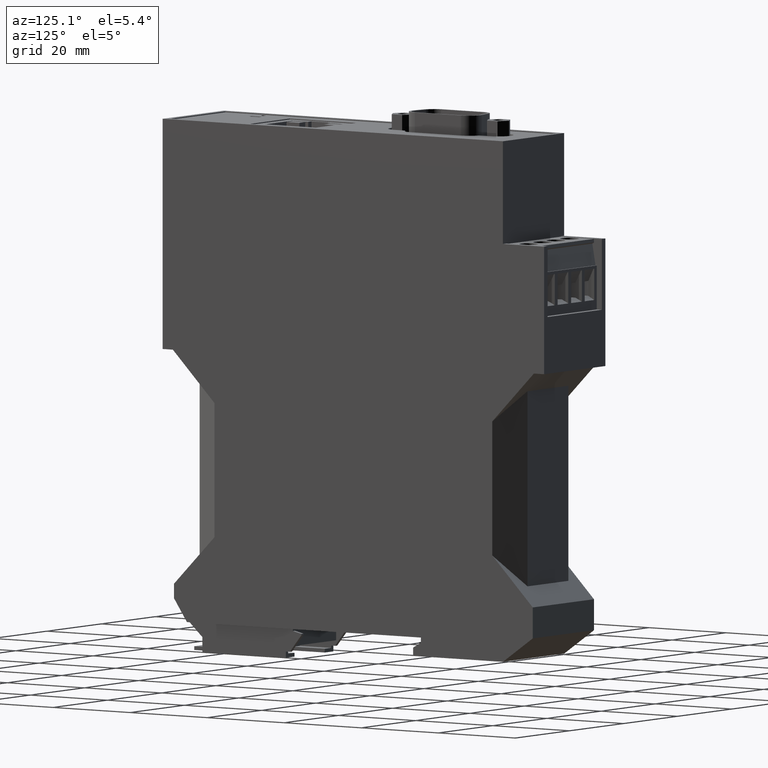
[diagram: clean part render]
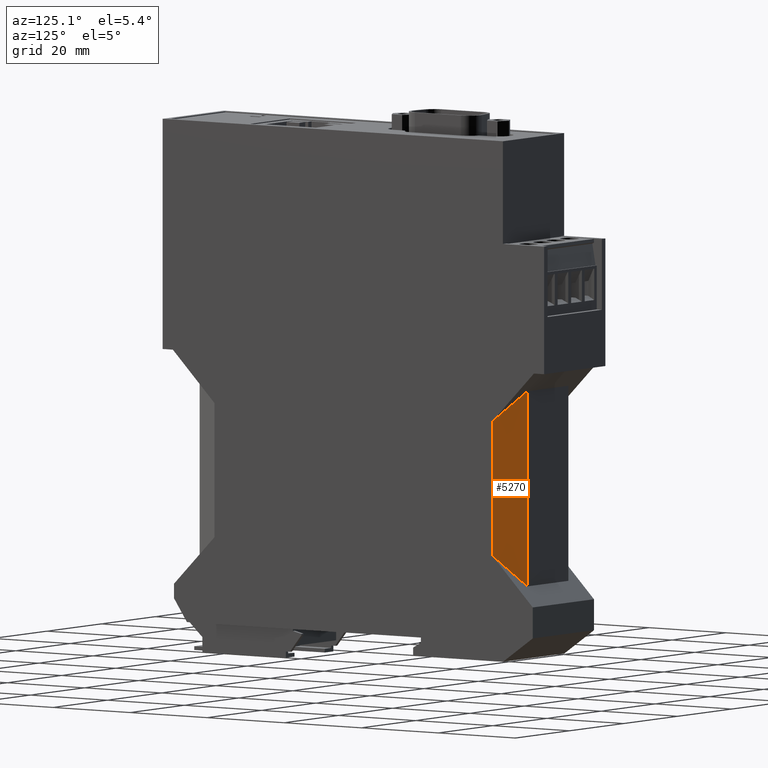
[diagram: same view with one face highlighted and labeled with its STEP entity id]
A machine part, auxiliary view. The second image highlights one B-rep face of the part: STEP entity #5270.
In plain terms, the highlighted planar face has unit normal (0.866, 0.5, 0).
Its self-contained STEP definition (entity closure, byte-faithful):
#2990=CARTESIAN_POINT('',(18.5499999999986,47.0999999999095,22.6));
#3000=VERTEX_POINT('',#2990);
#3030=CARTESIAN_POINT('',(18.5499999999986,24.,22.6));
#3040=DIRECTION('',(0.,1.,0.));
#3050=VECTOR('',#3040,1.);
#3060=LINE('',#3030,#3050);
#3070=CARTESIAN_POINT('',(18.5499999999986,18.5000000000902,22.6));
#3080=VERTEX_POINT('',#3070);
#3090=EDGE_CURVE('',#3080,#3000,#3060,.T.);
#4970=CARTESIAN_POINT('',(-4.26448822334936,53.7000000000005,
35.7719509171734));
#4980=DIRECTION('',(0.499999999999998,-0.,0.86602540378444));
#4990=DIRECTION('',(0.86602540378444,0.,-0.499999999999998));
#5000=AXIS2_PLACEMENT_3D('',#4970,#4980,#4990);
#5010=PLANE('',#5000);
#5020=CARTESIAN_POINT('',(24.,52.5499999999109,19.4534410329157));
#5030=DIRECTION('',(0.65465367070798,0.654653670707974,
-0.377964473009227));
#5040=VECTOR('',#5030,1.);
#5050=LINE('',#5020,#5040);
#5060=CARTESIAN_POINT('',(25.0500000000939,53.6000000000048,
18.8472232502124));
#5070=VERTEX_POINT('',#5060);
#5080=EDGE_CURVE('',#3000,#5070,#5050,.T.);
#5090=ORIENTED_EDGE('',*,*,#5080,.F.);
#5100=CARTESIAN_POINT('',(25.0500000000941,24.,18.8472232502123));
#5110=DIRECTION('',(-6.59999999999827E-15,1.,3.81051177665051E-15));
#5120=VECTOR('',#5110,1.);
#5130=LINE('',#5100,#5120);
#5140=CARTESIAN_POINT('',(25.0500000000942,11.9999999999957,
18.8472232502123));
#5150=VERTEX_POINT('',#5140);
#5160=EDGE_CURVE('',#5150,#5070,#5130,.T.);
#5170=ORIENTED_EDGE('',*,*,#5160,.T.);
#5180=CARTESIAN_POINT('',(24.,13.0500000000897,19.4534410329157));
#5190=DIRECTION('',(-0.65465367070803,0.654653670707909,
0.377964473009255));
#5200=VECTOR('',#5190,1.);
#5210=LINE('',#5180,#5200);
#5220=EDGE_CURVE('',#5150,#3080,#5210,.T.);
#5230=ORIENTED_EDGE('',*,*,#5220,.F.);
#5240=ORIENTED_EDGE('',*,*,#3090,.F.);
#5250=EDGE_LOOP('',(#5240,#5230,#5170,#5090));
#5260=FACE_OUTER_BOUND('',#5250,.T.);
#5270=ADVANCED_FACE('',(#5260),#5010,.T.);